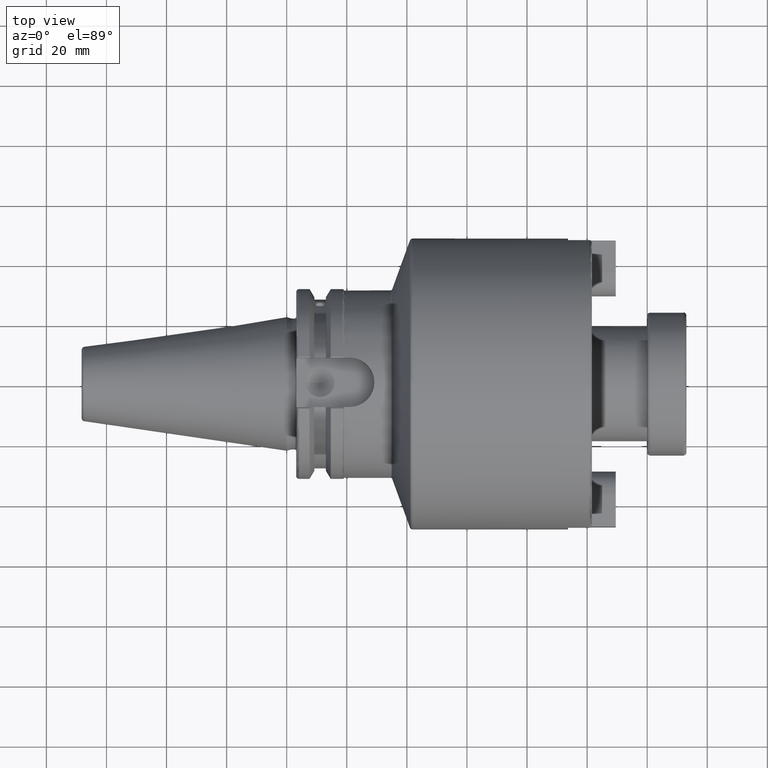
[diagram: clean part render]
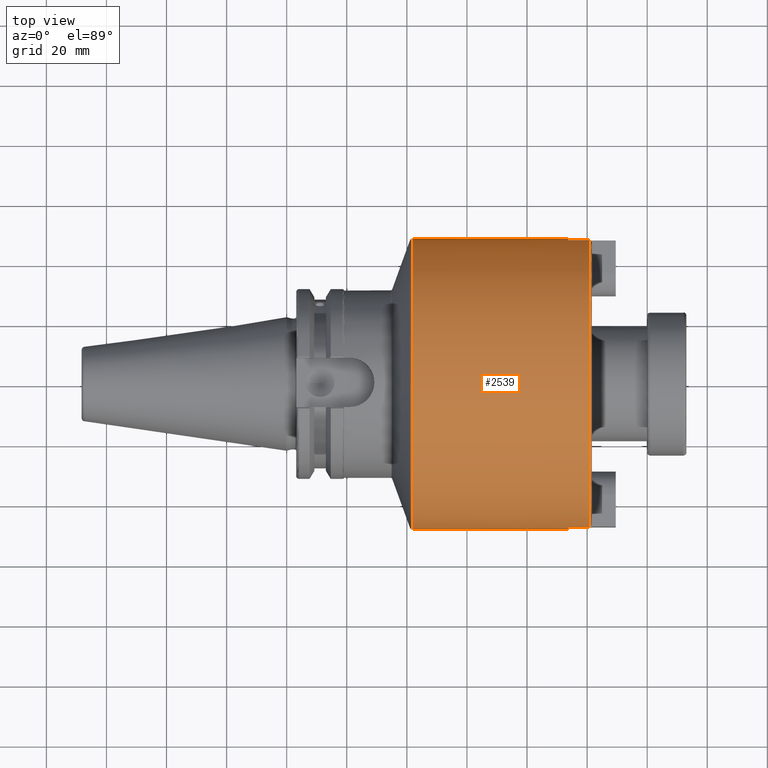
[diagram: same view with one face highlighted and labeled with its STEP entity id]
A machine part, top view. The second image highlights one B-rep face of the part: STEP entity #2539.
In plain terms, the highlighted cylindrical surface (bore or boss wall) has radius 48.425 mm, axis along (1, 0, 0).
Its self-contained STEP definition (entity closure, byte-faithful):
#116=CYLINDRICAL_SURFACE('',#2800,48.425);
#202=CIRCLE('',#2790,48.425);
#204=CIRCLE('',#2792,48.425);
#208=CIRCLE('',#2801,48.425);
#209=CIRCLE('',#2802,48.425);
#210=CIRCLE('',#2803,48.425);
#211=CIRCLE('',#2804,48.425);
#212=CIRCLE('',#2805,48.425);
#353=FACE_OUTER_BOUND('',#506,.T.);
#506=EDGE_LOOP('',(#1714,#1715,#1716,#1717,#1718,#1719,#1720,#1721,#1722,
#1723,#1724,#1725,#1726));
#678=LINE('',#3948,#841);
#683=LINE('',#3983,#846);
#685=LINE('',#3987,#848);
#686=LINE('',#3994,#849);
#687=LINE('',#3998,#850);
#841=VECTOR('',#3121,10.);
#846=VECTOR('',#3148,10.);
#848=VECTOR('',#3152,48.425);
#849=VECTOR('',#3159,10.);
#850=VECTOR('',#3162,10.);
#1042=VERTEX_POINT('',#3931);
#1045=VERTEX_POINT('',#3946);
#1046=VERTEX_POINT('',#3950);
#1048=VERTEX_POINT('',#3954);
#1053=VERTEX_POINT('',#3971);
#1055=VERTEX_POINT('',#3986);
#1056=VERTEX_POINT('',#3988);
#1057=VERTEX_POINT('',#3991);
#1058=VERTEX_POINT('',#3993);
#1059=VERTEX_POINT('',#3995);
#1060=VERTEX_POINT('',#3997);
#1302=EDGE_CURVE('',#1042,#1045,#678,.T.);
#1303=EDGE_CURVE('',#1045,#1046,#202,.T.);
#1306=EDGE_CURVE('',#1046,#1048,#204,.T.);
#1314=EDGE_CURVE('',#1048,#1053,#683,.T.);
#1316=EDGE_CURVE('',#1046,#1055,#685,.T.);
#1317=EDGE_CURVE('',#1056,#1055,#208,.T.);
#1318=EDGE_CURVE('',#1055,#1056,#209,.T.);
#1319=EDGE_CURVE('',#1057,#1053,#210,.T.);
#1320=EDGE_CURVE('',#1057,#1058,#686,.T.);
#1321=EDGE_CURVE('',#1058,#1059,#211,.T.);
#1322=EDGE_CURVE('',#1059,#1060,#687,.T.);
#1323=EDGE_CURVE('',#1042,#1060,#212,.T.);
#1714=ORIENTED_EDGE('',*,*,#1302,.T.);
#1715=ORIENTED_EDGE('',*,*,#1303,.T.);
#1716=ORIENTED_EDGE('',*,*,#1316,.T.);
#1717=ORIENTED_EDGE('',*,*,#1317,.F.);
#1718=ORIENTED_EDGE('',*,*,#1318,.F.);
#1719=ORIENTED_EDGE('',*,*,#1316,.F.);
#1720=ORIENTED_EDGE('',*,*,#1306,.T.);
#1721=ORIENTED_EDGE('',*,*,#1314,.T.);
#1722=ORIENTED_EDGE('',*,*,#1319,.F.);
#1723=ORIENTED_EDGE('',*,*,#1320,.T.);
#1724=ORIENTED_EDGE('',*,*,#1321,.T.);
#1725=ORIENTED_EDGE('',*,*,#1322,.T.);
#1726=ORIENTED_EDGE('',*,*,#1323,.F.);
#2539=ADVANCED_FACE('',(#353),#116,.T.);
#2790=AXIS2_PLACEMENT_3D('',#3951,#3124,#3125);
#2792=AXIS2_PLACEMENT_3D('',#3956,#3129,#3130);
#2800=AXIS2_PLACEMENT_3D('',#3985,#3150,#3151);
#2801=AXIS2_PLACEMENT_3D('',#3989,#3153,#3154);
#2802=AXIS2_PLACEMENT_3D('',#3990,#3155,#3156);
#2803=AXIS2_PLACEMENT_3D('',#3992,#3157,#3158);
#2804=AXIS2_PLACEMENT_3D('',#3996,#3160,#3161);
#2805=AXIS2_PLACEMENT_3D('',#3999,#3163,#3164);
#3121=DIRECTION('',(-1.,0.,0.));
#3124=DIRECTION('center_axis',(-1.,0.,0.));
#3125=DIRECTION('ref_axis',(0.,1.,0.));
#3129=DIRECTION('center_axis',(-1.,0.,0.));
#3130=DIRECTION('ref_axis',(0.,1.,0.));
#3148=DIRECTION('',(1.,0.,0.));
#3150=DIRECTION('center_axis',(1.,0.,0.));
#3151=DIRECTION('ref_axis',(0.,1.,0.));
#3152=DIRECTION('',(-1.,0.,0.));
#3153=DIRECTION('center_axis',(-1.,0.,0.));
#3154=DIRECTION('ref_axis',(0.,-1.,1.83697019872103E-16));
#3155=DIRECTION('center_axis',(-1.,0.,0.));
#3156=DIRECTION('ref_axis',(0.,-1.,1.83697019872103E-16));
#3157=DIRECTION('center_axis',(1.,0.,0.));
#3158=DIRECTION('ref_axis',(0.,-1.,1.83697019872103E-16));
#3159=DIRECTION('',(-1.,0.,0.));
#3160=DIRECTION('center_axis',(-1.,0.,0.));
#3161=DIRECTION('ref_axis',(0.,1.,0.));
#3162=DIRECTION('',(1.,0.,0.));
#3163=DIRECTION('center_axis',(1.,0.,0.));
#3164=DIRECTION('ref_axis',(0.,-1.,1.83697019872103E-16));
#3931=CARTESIAN_POINT('',(100.6,-47.770455304508,-7.93499999999999));
#3946=CARTESIAN_POINT('',(93.65,-47.770455304508,-7.935));
#3948=CARTESIAN_POINT('',(71.425594386761,-47.770455304508,-7.93499999999999));
#3950=CARTESIAN_POINT('',(93.65,-48.425,-5.93035212487106E-15));
#3951=CARTESIAN_POINT('Origin',(93.65,0.,0.));
#3954=CARTESIAN_POINT('',(93.65,-47.770455304508,7.93500000000001));
#3956=CARTESIAN_POINT('Origin',(93.65,0.,0.));
#3971=CARTESIAN_POINT('',(100.6,-47.770455304508,7.93500000000001));
#3983=CARTESIAN_POINT('',(71.425594386761,-47.770455304508,7.93500000000001));
#3985=CARTESIAN_POINT('Origin',(71.425594386761,0.,0.));
#3986=CARTESIAN_POINT('',(41.9513963117317,-48.425,-5.93035212487106E-15));
#3987=CARTESIAN_POINT('',(71.425594386761,-48.425,-5.93035212487106E-15));
#3988=CARTESIAN_POINT('',(41.9513963117317,-5.93035212487106E-15,48.425));
#3989=CARTESIAN_POINT('Origin',(41.9513963117317,0.,0.));
#3990=CARTESIAN_POINT('Origin',(41.9513963117317,0.,0.));
#3991=CARTESIAN_POINT('',(100.6,47.770455304508,7.935));
#3992=CARTESIAN_POINT('Origin',(100.6,0.,0.));
#3993=CARTESIAN_POINT('',(93.65,47.770455304508,7.935));
#3994=CARTESIAN_POINT('',(71.425594386761,47.770455304508,7.935));
#3995=CARTESIAN_POINT('',(93.65,47.770455304508,-7.935));
#3996=CARTESIAN_POINT('Origin',(93.65,0.,0.));
#3997=CARTESIAN_POINT('',(100.6,47.770455304508,-7.935));
#3998=CARTESIAN_POINT('',(71.425594386761,47.770455304508,-7.935));
#3999=CARTESIAN_POINT('Origin',(100.6,0.,0.));